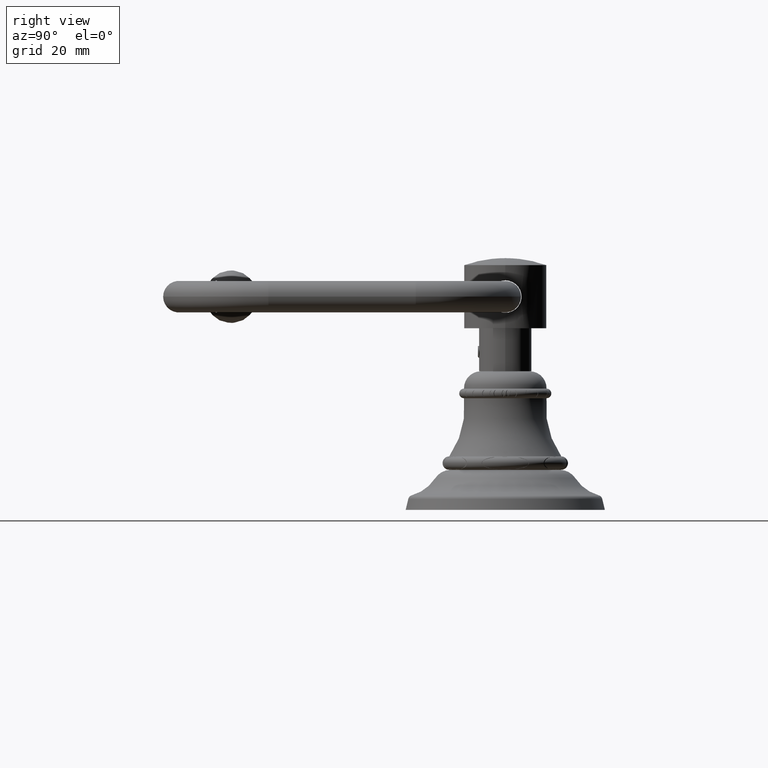
[diagram: clean part render]
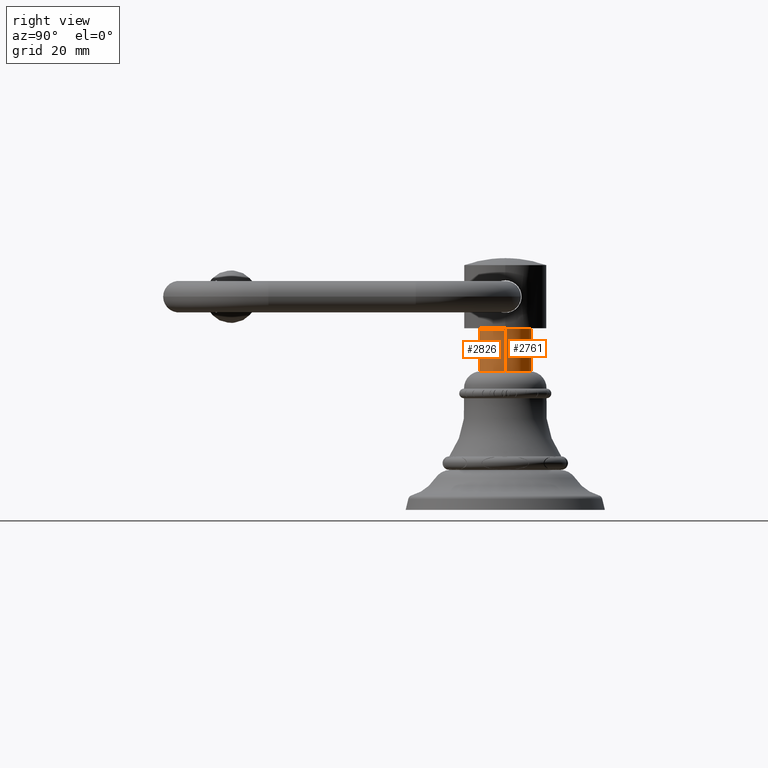
[diagram: same view with one multi-face feature highlighted, each face labeled with its STEP entity id]
A machine part, right view. The highlighted faces form ONE feature: a constant-radius fillet chain: 2 tangent blend faces with common blend radius 7.9375 mm. The faces share edges in the B-rep.
Their STEP definitions:
[1] entity #2761 (Cylinder):
#2506=CARTESIAN_POINT('',(0.E0,0.E0,2.156E0));
#2507=DIRECTION('',(0.E0,0.E0,1.E0));
#2508=DIRECTION('',(1.E0,0.E0,0.E0));
#2509=AXIS2_PLACEMENT_3D('',#2506,#2507,#2508);
#2511=CARTESIAN_POINT('',(0.E0,0.E0,1.645E0));
#2512=DIRECTION('',(0.E0,0.E0,-1.E0));
#2513=DIRECTION('',(-1.E0,0.E0,0.E0));
#2514=AXIS2_PLACEMENT_3D('',#2511,#2512,#2513);
#2565=DIRECTION('',(0.E0,0.E0,-1.E0));
#2566=VECTOR('',#2565,5.11E-1);
#2567=CARTESIAN_POINT('',(3.125E-1,0.E0,2.156E0));
#2568=LINE('',#2567,#2566);
#2574=DIRECTION('',(0.E0,0.E0,-1.E0));
#2575=VECTOR('',#2574,5.11E-1);
#2576=CARTESIAN_POINT('',(-3.125E-1,0.E0,2.156E0));
#2577=LINE('',#2576,#2575);
#2653=CARTESIAN_POINT('',(3.125E-1,0.E0,2.156E0));
#2654=CARTESIAN_POINT('',(3.125E-1,0.E0,1.645E0));
#2655=VERTEX_POINT('',#2653);
#2656=VERTEX_POINT('',#2654);
#2661=CARTESIAN_POINT('',(-3.125E-1,0.E0,2.156E0));
#2662=CARTESIAN_POINT('',(-3.125E-1,0.E0,1.645E0));
#2663=VERTEX_POINT('',#2661);
#2664=VERTEX_POINT('',#2662);
#2746=CARTESIAN_POINT('',(0.E0,0.E0,1.577849988216E0));
#2747=DIRECTION('',(0.E0,0.E0,1.E0));
#2748=DIRECTION('',(-1.E0,0.E0,0.E0));
#2749=AXIS2_PLACEMENT_3D('',#2746,#2747,#2748);
#2750=CYLINDRICAL_SURFACE('',#2749,3.125E-1);
#2752=ORIENTED_EDGE('',*,*,#2751,.F.);
#2754=ORIENTED_EDGE('',*,*,#2753,.T.);
#2756=ORIENTED_EDGE('',*,*,#2755,.T.);
#2758=ORIENTED_EDGE('',*,*,#2757,.T.);
#2759=EDGE_LOOP('',(#2752,#2754,#2756,#2758));
#2760=FACE_OUTER_BOUND('',#2759,.F.);
#2761=ADVANCED_FACE('',(#2760),#2750,.T.);
#2510=CIRCLE('',#2509,3.125E-1);
#2515=CIRCLE('',#2514,3.125E-1);
#2751=EDGE_CURVE('',#2655,#2656,#2568,.T.);
#2753=EDGE_CURVE('',#2655,#2663,#2510,.T.);
#2755=EDGE_CURVE('',#2663,#2664,#2577,.T.);
#2757=EDGE_CURVE('',#2664,#2656,#2515,.T.);
[2] entity #2826 (Cylinder):
#2565=DIRECTION('',(0.E0,0.E0,-1.E0));
#2566=VECTOR('',#2565,5.11E-1);
#2567=CARTESIAN_POINT('',(3.125E-1,0.E0,2.156E0));
#2568=LINE('',#2567,#2566);
#2569=CARTESIAN_POINT('',(0.E0,0.E0,1.645E0));
#2570=DIRECTION('',(0.E0,0.E0,-1.E0));
#2571=DIRECTION('',(1.E0,0.E0,0.E0));
#2572=AXIS2_PLACEMENT_3D('',#2569,#2570,#2571);
#2574=DIRECTION('',(0.E0,0.E0,-1.E0));
#2575=VECTOR('',#2574,5.11E-1);
#2576=CARTESIAN_POINT('',(-3.125E-1,0.E0,2.156E0));
#2577=LINE('',#2576,#2575);
#2578=CARTESIAN_POINT('',(0.E0,0.E0,2.156E0));
#2579=DIRECTION('',(0.E0,0.E0,1.E0));
#2580=DIRECTION('',(-1.E0,0.E0,0.E0));
#2581=AXIS2_PLACEMENT_3D('',#2578,#2579,#2580);
#2653=CARTESIAN_POINT('',(3.125E-1,0.E0,2.156E0));
#2654=CARTESIAN_POINT('',(3.125E-1,0.E0,1.645E0));
#2655=VERTEX_POINT('',#2653);
#2656=VERTEX_POINT('',#2654);
#2661=CARTESIAN_POINT('',(-3.125E-1,0.E0,2.156E0));
#2662=CARTESIAN_POINT('',(-3.125E-1,0.E0,1.645E0));
#2663=VERTEX_POINT('',#2661);
#2664=VERTEX_POINT('',#2662);
#2813=CARTESIAN_POINT('',(0.E0,0.E0,1.577849988216E0));
#2814=DIRECTION('',(0.E0,0.E0,1.E0));
#2815=DIRECTION('',(-1.E0,0.E0,0.E0));
#2816=AXIS2_PLACEMENT_3D('',#2813,#2814,#2815);
#2817=CYLINDRICAL_SURFACE('',#2816,3.125E-1);
#2818=ORIENTED_EDGE('',*,*,#2751,.T.);
#2820=ORIENTED_EDGE('',*,*,#2819,.T.);
#2821=ORIENTED_EDGE('',*,*,#2755,.F.);
#2823=ORIENTED_EDGE('',*,*,#2822,.T.);
#2824=EDGE_LOOP('',(#2818,#2820,#2821,#2823));
#2825=FACE_OUTER_BOUND('',#2824,.F.);
#2826=ADVANCED_FACE('',(#2825),#2817,.T.);
#2573=CIRCLE('',#2572,3.125E-1);
#2582=CIRCLE('',#2581,3.125E-1);
#2751=EDGE_CURVE('',#2655,#2656,#2568,.T.);
#2755=EDGE_CURVE('',#2663,#2664,#2577,.T.);
#2819=EDGE_CURVE('',#2656,#2664,#2573,.T.);
#2822=EDGE_CURVE('',#2663,#2655,#2582,.T.);